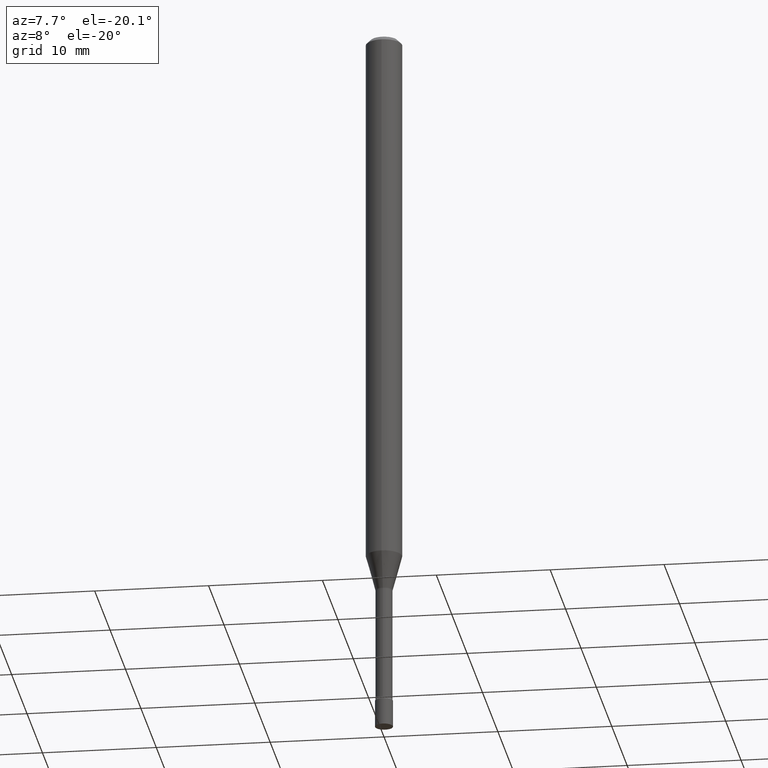
[diagram: clean part render]
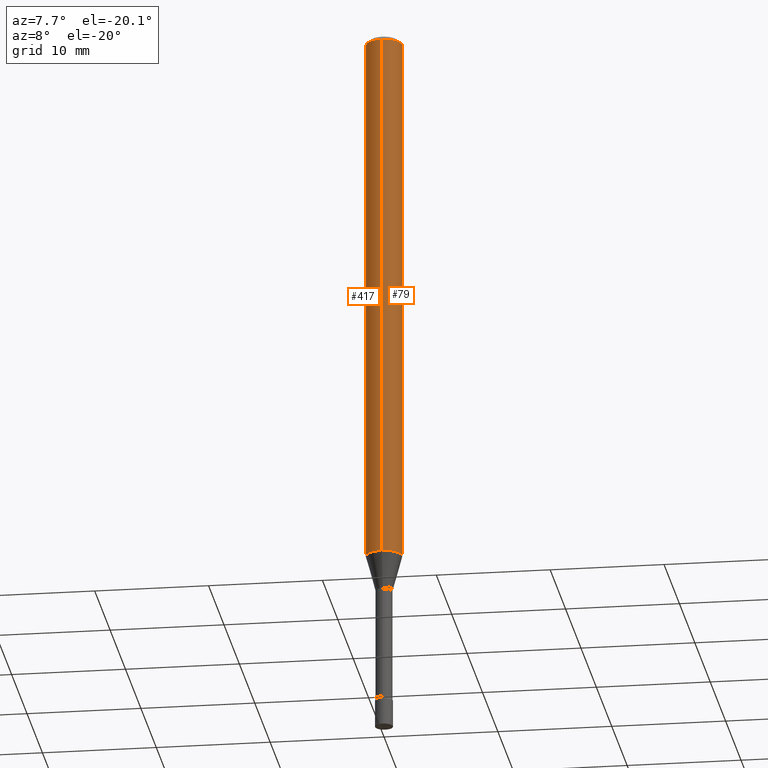
[diagram: same view with one multi-face feature highlighted, each face labeled with its STEP entity id]
A machine part, auxiliary view. The highlighted faces form ONE feature: a constant-radius fillet chain: 2 tangent blend faces with common blend radius 1.5875 mm. The faces share edges in the B-rep.
Their STEP definitions:
[1] entity #79 (Cylinder):
#2 = CARTESIAN_POINT ( 'NONE',  ( 4.440892098501088631E-16, 0.06249999999999995143, -0.01500000000000024751 ) ) ;
#18 = AXIS2_PLACEMENT_3D ( 'NONE', #326, #465, #331 ) ;
#36 = ORIENTED_EDGE ( 'NONE', *, *, #311, .F. ) ;
#54 = CARTESIAN_POINT ( 'NONE',  ( 4.440892098500625669E-16, 0.06250000000000000000, -2.182165374455402786E-16 ) ) ;
#55 = FACE_OUTER_BOUND ( 'NONE', #64, .T. ) ;
#58 = CARTESIAN_POINT ( 'NONE',  ( -4.364351673553458169E-16, -0.06250000000000659195, -1.879536105567577886 ) ) ;
#64 = EDGE_LOOP ( 'NONE', ( #322, #345, #36, #448 ) ) ;
#78 = CIRCLE ( 'NONE', #494, 0.06250000000000000000 ) ;
#79 = ADVANCED_FACE ( 'NONE', ( #55 ), #254, .T. ) ;
#103 = CIRCLE ( 'NONE', #159, 0.06250000000000000000 ) ;
#105 = DIRECTION ( 'NONE',  ( -2.445480495465296209E-29, 3.491464599128644458E-15, 1.000000000000000000 ) ) ;
#121 = LINE ( 'NONE', #54, #174 ) ;
#130 = CARTESIAN_POINT ( 'NONE',  ( -4.364351673553912750E-16, -0.06250000000000005551, -0.01499999999999981209 ) ) ;
#134 = DIRECTION ( 'NONE',  ( -2.445480495465296209E-29, 3.491464599128644063E-15, 1.000000000000000000 ) ) ;
#137 = DIRECTION ( 'NONE',  ( -6.982962677686265922E-15, -1.000000000000000000, 4.370956789862821150E-15 ) ) ;
#159 = AXIS2_PLACEMENT_3D ( 'NONE', #178, #105, #137 ) ;
#174 = VECTOR ( 'NONE', #134, 39.37007874015748143 ) ;
#178 = CARTESIAN_POINT ( 'NONE',  ( 4.596368886688314482E-29, -6.562333775373317766E-15, -1.879536105567578330 ) ) ;
#199 = EDGE_CURVE ( 'NONE', #463, #213, #121, .T. ) ;
#213 = VERTEX_POINT ( 'NONE', #2 ) ;
#219 = EDGE_CURVE ( 'NONE', #234, #272, #441, .T. ) ;
#234 = VERTEX_POINT ( 'NONE', #58 ) ;
#254 = CYLINDRICAL_SURFACE ( 'NONE', #18, 0.06250000000000000000 ) ;
#259 = DIRECTION ( 'NONE',  ( -2.445480495465296209E-29, 3.491464599128644458E-15, 1.000000000000000000 ) ) ;
#272 = VERTEX_POINT ( 'NONE', #130 ) ;
#280 = CARTESIAN_POINT ( 'NONE',  ( -4.364351673553916201E-16, -0.06250000000000000000, 2.182165374455402786E-16 ) ) ;
#311 = EDGE_CURVE ( 'NONE', #272, #213, #78, .T. ) ;
#322 = ORIENTED_EDGE ( 'NONE', *, *, #393, .T. ) ;
#326 = CARTESIAN_POINT ( 'NONE',  ( 0.000000000000000000, 0.000000000000000000, 0.000000000000000000 ) ) ;
#331 = DIRECTION ( 'NONE',  ( -6.982962677686265922E-15, -1.000000000000000000, 3.491464599128644458E-15 ) ) ;
#332 = CARTESIAN_POINT ( 'NONE',  ( 4.440892098501083701E-16, 0.06249999999999340805, -1.879536105567578552 ) ) ;
#345 = ORIENTED_EDGE ( 'NONE', *, *, #199, .T. ) ;
#393 = EDGE_CURVE ( 'NONE', #234, #463, #103, .T. ) ;
#436 = VECTOR ( 'NONE', #437, 39.37007874015748143 ) ;
#437 = DIRECTION ( 'NONE',  ( -2.445480495465296209E-29, 3.491464599128644063E-15, 1.000000000000000000 ) ) ;
#441 = LINE ( 'NONE', #280, #436 ) ;
#448 = ORIENTED_EDGE ( 'NONE', *, *, #219, .F. ) ;
#463 = VERTEX_POINT ( 'NONE', #332 ) ;
#465 = DIRECTION ( 'NONE',  ( -2.445480495465296209E-29, 3.491464599128644458E-15, 1.000000000000000000 ) ) ;
#493 = CARTESIAN_POINT ( 'NONE',  ( 3.668220743197951390E-31, -5.237196898692977928E-17, -0.01500000000000003067 ) ) ;
#494 = AXIS2_PLACEMENT_3D ( 'NONE', #493, #259, #503 ) ;
#503 = DIRECTION ( 'NONE',  ( -6.982962677686265922E-15, -1.000000000000000000, 3.483106191921935554E-15 ) ) ;
[2] entity #417 (Cylinder):
#2 = CARTESIAN_POINT ( 'NONE',  ( 4.440892098501088631E-16, 0.06249999999999995143, -0.01500000000000024751 ) ) ;
#23 = ORIENTED_EDGE ( 'NONE', *, *, #199, .F. ) ;
#54 = CARTESIAN_POINT ( 'NONE',  ( 4.440892098500625669E-16, 0.06250000000000000000, -2.182165374455402786E-16 ) ) ;
#58 = CARTESIAN_POINT ( 'NONE',  ( -4.364351673553458169E-16, -0.06250000000000659195, -1.879536105567577886 ) ) ;
#63 = CARTESIAN_POINT ( 'NONE',  ( 0.000000000000000000, 0.000000000000000000, 0.000000000000000000 ) ) ;
#73 = AXIS2_PLACEMENT_3D ( 'NONE', #158, #88, #400 ) ;
#88 = DIRECTION ( 'NONE',  ( -2.445480495465296209E-29, 3.491464599128644458E-15, 1.000000000000000000 ) ) ;
#114 = DIRECTION ( 'NONE',  ( -2.445480495465296209E-29, 3.491464599128644458E-15, 1.000000000000000000 ) ) ;
#121 = LINE ( 'NONE', #54, #174 ) ;
#130 = CARTESIAN_POINT ( 'NONE',  ( -4.364351673553912750E-16, -0.06250000000000005551, -0.01499999999999981209 ) ) ;
#134 = DIRECTION ( 'NONE',  ( -2.445480495465296209E-29, 3.491464599128644063E-15, 1.000000000000000000 ) ) ;
#156 = EDGE_CURVE ( 'NONE', #463, #234, #204, .T. ) ;
#158 = CARTESIAN_POINT ( 'NONE',  ( 4.596368886688314482E-29, -6.562333775373317766E-15, -1.879536105567578330 ) ) ;
#174 = VECTOR ( 'NONE', #134, 39.37007874015748143 ) ;
#199 = EDGE_CURVE ( 'NONE', #463, #213, #121, .T. ) ;
#204 = CIRCLE ( 'NONE', #73, 0.06250000000000000000 ) ;
#211 = ORIENTED_EDGE ( 'NONE', *, *, #219, .T. ) ;
#213 = VERTEX_POINT ( 'NONE', #2 ) ;
#219 = EDGE_CURVE ( 'NONE', #234, #272, #441, .T. ) ;
#234 = VERTEX_POINT ( 'NONE', #58 ) ;
#272 = VERTEX_POINT ( 'NONE', #130 ) ;
#280 = CARTESIAN_POINT ( 'NONE',  ( -4.364351673553916201E-16, -0.06250000000000000000, 2.182165374455402786E-16 ) ) ;
#310 = CARTESIAN_POINT ( 'NONE',  ( 3.668220743197951390E-31, -5.237196898692977928E-17, -0.01500000000000003067 ) ) ;
#332 = CARTESIAN_POINT ( 'NONE',  ( 4.440892098501083701E-16, 0.06249999999999340805, -1.879536105567578552 ) ) ;
#346 = CYLINDRICAL_SURFACE ( 'NONE', #479, 0.06250000000000000000 ) ;
#377 = FACE_OUTER_BOUND ( 'NONE', #378, .T. ) ;
#378 = EDGE_LOOP ( 'NONE', ( #23, #384, #211, #424 ) ) ;
#384 = ORIENTED_EDGE ( 'NONE', *, *, #156, .T. ) ;
#386 = DIRECTION ( 'NONE',  ( -6.982962677686265922E-15, -1.000000000000000000, 3.483106191921935554E-15 ) ) ;
#400 = DIRECTION ( 'NONE',  ( -6.982962677686265922E-15, -1.000000000000000000, 4.370956789862821150E-15 ) ) ;
#415 = AXIS2_PLACEMENT_3D ( 'NONE', #310, #114, #386 ) ;
#417 = ADVANCED_FACE ( 'NONE', ( #377 ), #346, .T. ) ;
#424 = ORIENTED_EDGE ( 'NONE', *, *, #516, .F. ) ;
#436 = VECTOR ( 'NONE', #437, 39.37007874015748143 ) ;
#437 = DIRECTION ( 'NONE',  ( -2.445480495465296209E-29, 3.491464599128644063E-15, 1.000000000000000000 ) ) ;
#441 = LINE ( 'NONE', #280, #436 ) ;
#462 = DIRECTION ( 'NONE',  ( -2.445480495465296209E-29, 3.491464599128644458E-15, 1.000000000000000000 ) ) ;
#463 = VERTEX_POINT ( 'NONE', #332 ) ;
#479 = AXIS2_PLACEMENT_3D ( 'NONE', #63, #462, #496 ) ;
#496 = DIRECTION ( 'NONE',  ( -6.982962677686265922E-15, -1.000000000000000000, 3.491464599128644458E-15 ) ) ;
#516 = EDGE_CURVE ( 'NONE', #213, #272, #520, .T. ) ;
#520 = CIRCLE ( 'NONE', #415, 0.06250000000000000000 ) ;